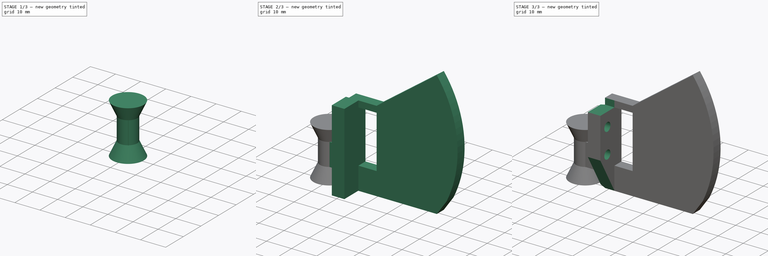
[diagram: build sequence overview — one tinted view per stage of 3, left to right]
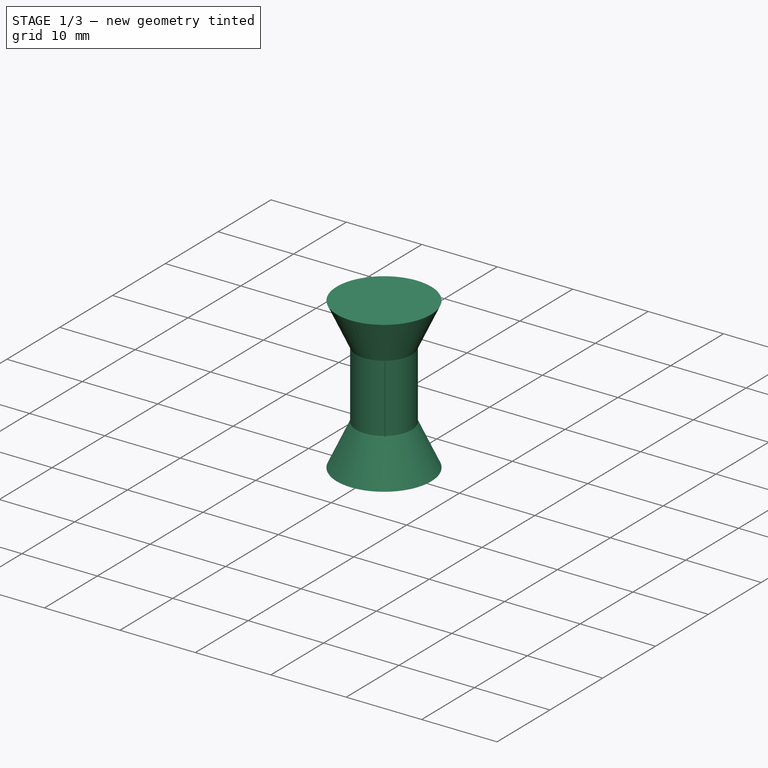
[diagram: stage 1 of 3 — iso view after this stage's code; geometry added in this stage tinted green]
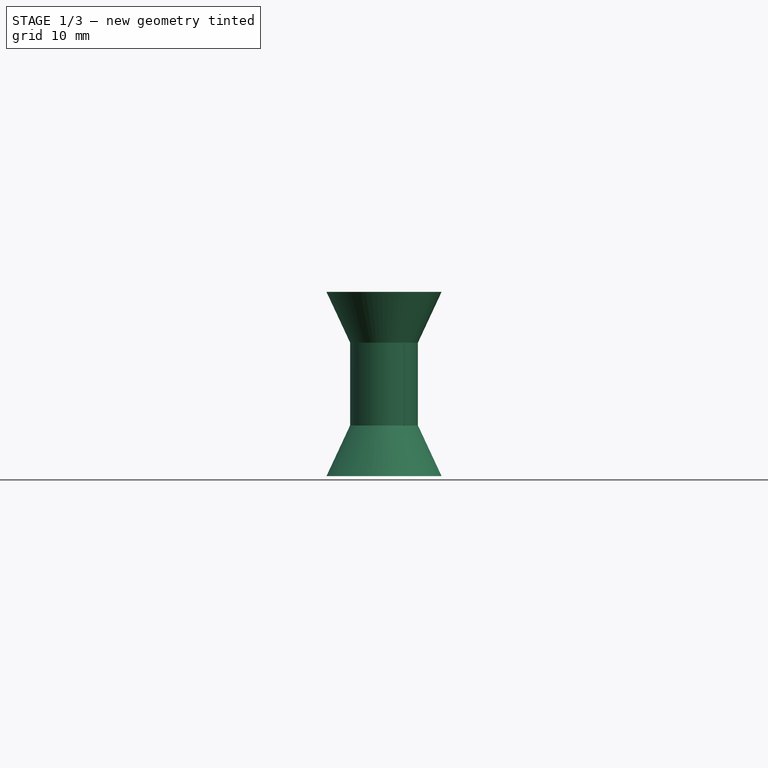
[diagram: stage 1 of 3 — front view after this stage's code; geometry added in this stage tinted green]
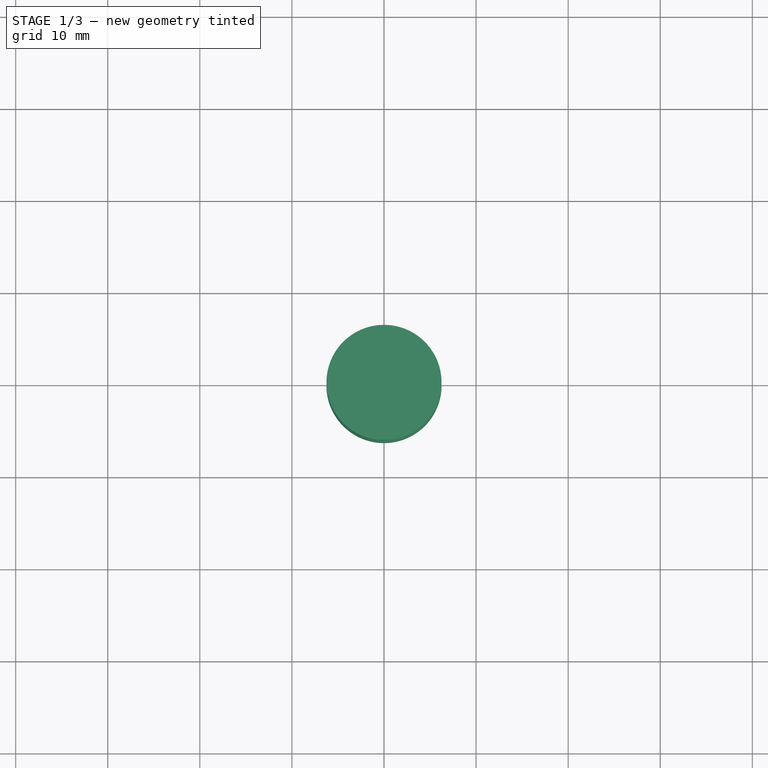
[diagram: stage 1 of 3 — top view after this stage's code; geometry added in this stage tinted green]
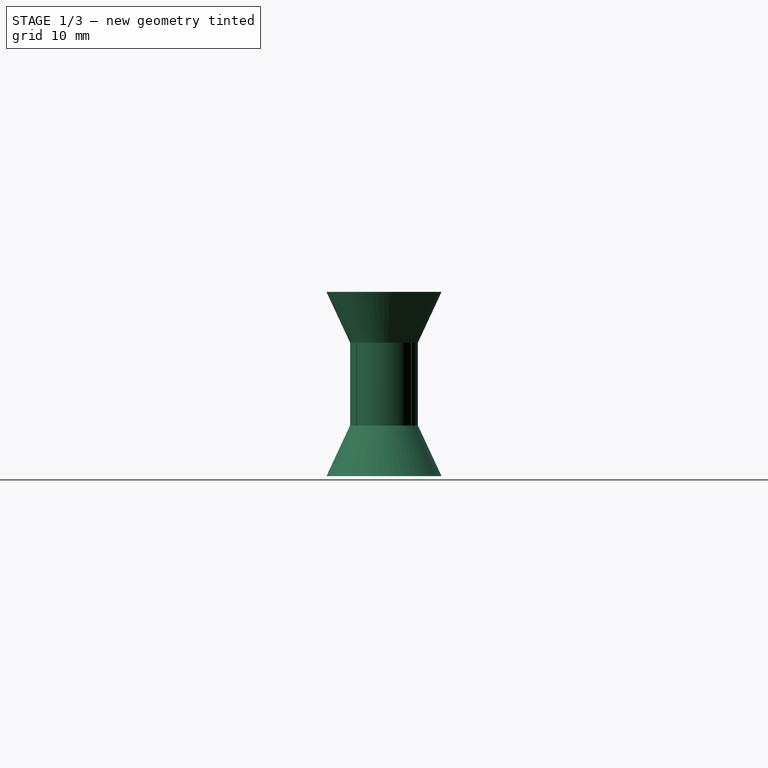
[diagram: stage 1 of 3 — right view after this stage's code; geometry added in this stage tinted green]
FCSTD DOCUMENT  (FreeCAD 0.16R6712 (Git))
Label: paddle_hindge
License: All rights reserved
LicenseURL: http://en.wikipedia.org/wiki/All_rights_reserved
objects: Sketcher::SketchObject×7, PartDesign::Pad×3, PartDesign::Pocket×3, PartDesign::Revolution×1
note: 21 computed .brp shape members not serialized (recipe doc carries the construction recipe); baked Part::Feature solids carry a one-line shape summary decoded from their .brp

FEATURE [Sketcher::SketchObject] Sketch
  Placement = pos=(0,0,0) rot=(1,0,0;1.5708rad)
  sketch-geometry (8):
    g0: LineSegment StartX=0 StartY=0 StartZ=0 EndX=6.25 EndY=0 EndZ=0
    g1: LineSegment StartX=6.25 StartY=0 StartZ=0 EndX=3.68531 EndY=5.5 EndZ=0
    g2: LineSegment StartX=3.68531 StartY=5.5 StartZ=0 EndX=3.68531 EndY=14.5 EndZ=0
    g3: LineSegment StartX=3.68531 StartY=14.5 StartZ=0 EndX=6.25 EndY=20 EndZ=0
    g4: LineSegment StartX=6.25 StartY=20 StartZ=0 EndX=0 EndY=20 EndZ=0
    g5: LineSegment [constr] StartX=0 StartY=14.5 StartZ=0 EndX=3.68531 EndY=14.5 EndZ=0
    g6: LineSegment [constr] StartX=3.68531 StartY=5.5 StartZ=0 EndX=0 EndY=5.5 EndZ=0
    g7: LineSegment StartX=0 StartY=20 StartZ=0 EndX=0 EndY=0 EndZ=0
  constraints (24):
    c: Horizontal(g0)
    c: Coincident(g0,g1)
    c: Coincident(g1,g2)
    c: Vertical(g2)
    c: Coincident(g2,g3)
    c: Coincident(g3,g4)
    c: Horizontal(g4)
    c: Equal(g0,g4)
    c: Coincident(g5,g2)
    c: Horizontal(g5)
    c: Coincident(g6,g1)
    c: Equal(g1,g3)
    c: Coincident(g7,g4)
    c: Vertical(g7)
    c: Coincident(g0,g7)
    c: Coincident(g0,g-1)
    c: Equal(g6,g5)
    c: Horizontal(g6)
    c: PointOnObject(g5,g7)
    c: Angle(g1,g0) = 1.13446
    c: DistanceX(g0,g0) = 6.25
    c: DistanceY(g7,g7) = 20
    c: DistanceY(g2,g2) = 9
    c: DistanceX(g5,g5) = 3.68531
FEATURE [PartDesign::Revolution] Revolution
  Angle = 360
  Axis = (0,0,1)
  Base = (0,0,0)
  Placement = pos=(0,0,0) rot=(1,0,0;1.5708rad)
  ReferenceAxis = -> Sketch [V_Axis]
  Reversed = true
  Sketch = -> Sketch
FEATURE [Sketcher::SketchObject] Sketch001
  Placement = pos=(0,0,20) rot=(0,0,1;3.14159rad)
  Support = -> Revolution [Face5]
  sketch-geometry (8):
    g0: LineSegment StartX=-1 StartY=3 StartZ=0 EndX=-2.25 EndY=3 EndZ=0
    g1: LineSegment StartX=-2.25 StartY=3 StartZ=0 EndX=-2.25 EndY=-3 EndZ=0
    g2: LineSegment StartX=-2.25 StartY=-3 StartZ=0 EndX=-1 EndY=-3 EndZ=0
    g3: LineSegment StartX=-1 StartY=-3 StartZ=0 EndX=-1 EndY=3 EndZ=0
    g4: LineSegment [constr] StartX=-1 StartY=3 StartZ=0 EndX=-1.625 EndY=0 EndZ=0
    g5: LineSegment [constr] StartX=-2.25 StartY=3 StartZ=0 EndX=-1.625 EndY=0 EndZ=0
    g6: LineSegment [constr] StartX=-2.25 StartY=-3 StartZ=0 EndX=-1.625 EndY=0 EndZ=0
    g7: LineSegment [constr] StartX=-1 StartY=-3 StartZ=0 EndX=-1.625 EndY=0 EndZ=0
  constraints (22):
    c: Coincident(g0,g1)
    c: Coincident(g1,g2)
    c: Coincident(g2,g3)
    c: Coincident(g3,g0)
    c: Horizontal(g0)
    c: Horizontal(g2)
    c: Vertical(g1)
    c: Vertical(g3)
    c: DistanceX(g2,g-1) = 1
    c: DistanceX(g2,g2) = 1.25
    c: DistanceY(g1,g1) = 6
    c: Coincident(g4,g0)
    c: Coincident(g5,g0)
    c: Coincident(g5,g4)
    c: Coincident(g6,g1)
    c: Coincident(g7,g2)
    c: Coincident(g4,g6)
    c: Coincident(g4,g7)
    c: Equal(g4,g5)
    c: Equal(g5,g7)
    c: Equal(g7,g6)
    c: PointOnObject(g4,g-1)
FEATURE [PartDesign::Pad] Pad
  Length = 20
  Length2 = 100
  Placement = pos=(0,0,0) rot=(1,0,0;1.5708rad)
  Reversed = true
  Sketch = -> Sketch001
  Type = 0
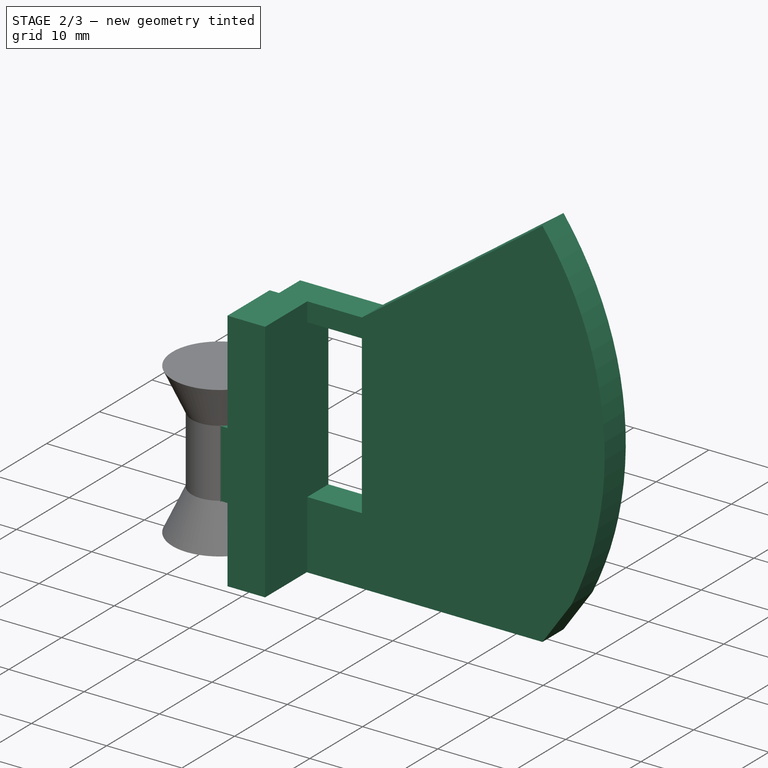
[diagram: stage 2 of 3 — iso view after this stage's code; geometry added in this stage tinted green]
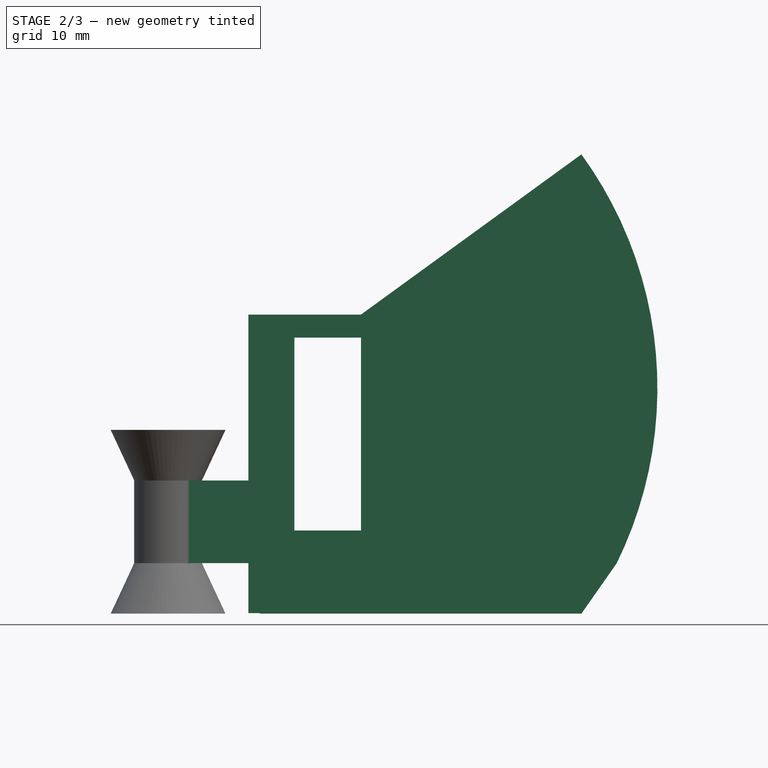
[diagram: stage 2 of 3 — front view after this stage's code; geometry added in this stage tinted green]
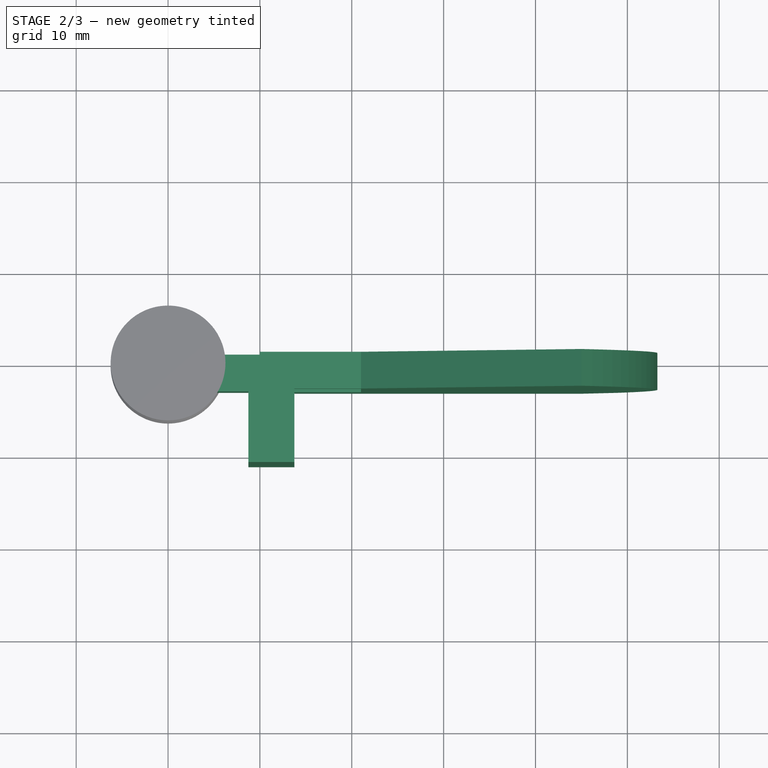
[diagram: stage 2 of 3 — top view after this stage's code; geometry added in this stage tinted green]
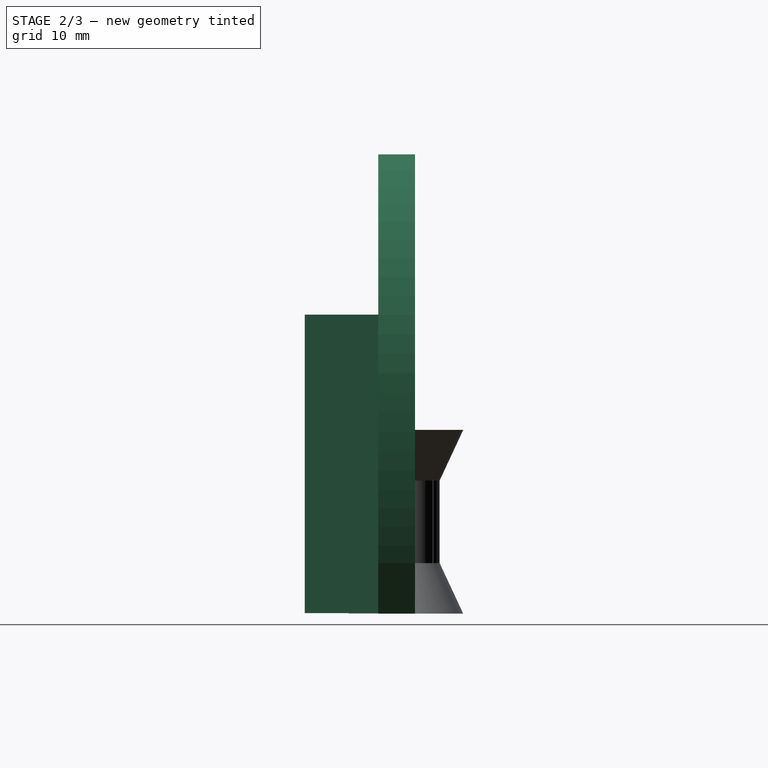
[diagram: stage 2 of 3 — right view after this stage's code; geometry added in this stage tinted green]
FEATURE [Sketcher::SketchObject] Sketch002
  ExternalGeometry = -> [Pad]
  Placement = pos=(0,-3,0) rot=(1,0,0;1.5708rad)
  Support = -> Pad [Face6]
  sketch-geometry (13):
    g0: LineSegment StartX=2.14044 StartY=14.5 StartZ=0 EndX=10 EndY=14.5 EndZ=0
    g1: LineSegment StartX=10 StartY=5.5 StartZ=0 EndX=2.14044 EndY=5.5 EndZ=0
    g2: LineSegment StartX=2.14044 StartY=5.5 StartZ=0 EndX=2.14044 EndY=14.5 EndZ=0
    g3: LineSegment StartX=10 StartY=5.5 StartZ=0 EndX=10 EndY=0 EndZ=0
    g4: LineSegment StartX=10 StartY=0 StartZ=0 EndX=45 EndY=0 EndZ=0
    g5: LineSegment StartX=21 StartY=32.5544 StartZ=0 EndX=45 EndY=50 EndZ=0
    g6: LineSegment [constr] StartX=45 StartY=50 StartZ=0 EndX=45 EndY=0 EndZ=0
    g7: LineSegment StartX=45 StartY=0 StartZ=0 EndX=48.8511 EndY=5.5 EndZ=0
    g8: ArcOfCircle CenterX=10 CenterY=24.5544 CenterZ=0 NormalX=0 NormalY=0 NormalZ=1 Radius=43.2722 StartAngle=5.82721 EndAngle=6.91181
    g9: LineSegment [constr] StartX=10 StartY=5.5 StartZ=0 EndX=48.8511 EndY=5.5 EndZ=0
    g10: LineSegment StartX=10 StartY=14.5 StartZ=0 EndX=10 EndY=32.5544 EndZ=0
    g11: LineSegment [constr] StartX=10 StartY=14.5 StartZ=0 EndX=10 EndY=5.5 EndZ=0
    g12: LineSegment StartX=10 StartY=32.5544 StartZ=0 EndX=21 EndY=32.5544 EndZ=0
  constraints (36):
    c: Coincident(g1,g2)
    c: Coincident(g2,g0)
    c: Horizontal(g0)
    c: Horizontal(g1)
    c: Vertical(g2)
    c: Coincident(g0,g-3)
    c: DistanceX(g-1,g1) = 10
    c: Coincident(g3,g1)
    c: Vertical(g3)
    c: Coincident(g3,g4)
    c: Horizontal(g4)
    c: Coincident(g6,g5)
    c: Vertical(g6)
    c: Coincident(g4,g6)
    c: PointOnObject(g3,g-1)
    c: Coincident(g7,g4)
    c: Angle(g7,g4) = 2.18166
    c: Coincident(g8,g7)
    c: Coincident(g8,g5)
    c: Coincident(g9,g1)
    c: Horizontal(g9)
    c: Coincident(g7,g9)
    c: Coincident(g1,g-3)
    c: DistanceY(g6,g6) = 50
    c: DistanceX(g4,g4) = 35
    c: DistanceX(g8,g0) = 0
    c: Coincident(g10,g0)
    c: Coincident(g11,g0)
    c: Vertical(g11)
    c: Coincident(g1,g11)
    c: Vertical(g10)
    c: Coincident(g12,g10)
    c: Horizontal(g12)
    c: Coincident(g5,g12)
    c: DistanceY(g8,g10) = 8
    c: DistanceX(g12,g12) = 11
FEATURE [PartDesign::Pad] Pad001
  Length = 4
  Length2 = 100
  Placement = pos=(0,0,0) rot=(1,0,0;1.5708rad)
  Reversed = true
  Sketch = -> Sketch002
  Type = 0
FEATURE [Sketcher::SketchObject] Sketch003
  ExternalGeometry = -> [Pad001]
  Placement = pos=(0,-3,0) rot=(1,0,0;1.5708rad)
  Support = -> Pad001 [Face11]
  sketch-geometry (5):
    g0: LineSegment StartX=13.75 StartY=30.0544 StartZ=0 EndX=21 EndY=30.0544 EndZ=0
    g1: LineSegment StartX=21 StartY=30.0544 StartZ=0 EndX=21 EndY=9.05437 EndZ=0
    g2: LineSegment StartX=21 StartY=9.05437 StartZ=0 EndX=13.75 EndY=9.05437 EndZ=0
    g3: LineSegment StartX=13.75 StartY=9.05437 StartZ=0 EndX=13.75 EndY=30.0544 EndZ=0
    g4: LineSegment [constr] StartX=21 StartY=32.5544 StartZ=0 EndX=21 EndY=30.0544 EndZ=0
  constraints (14):
    c: Coincident(g0,g1)
    c: Coincident(g1,g2)
    c: Coincident(g2,g3)
    c: Coincident(g3,g0)
    c: Horizontal(g0)
    c: Horizontal(g2)
    c: Vertical(g1)
    c: Vertical(g3)
    c: DistanceX(g0,g0) = 7.25
    c: DistanceY(g1,g1) = 21
    c: Coincident(g4,g-3)
    c: Vertical(g4)
    c: Coincident(g0,g4)
    c: DistanceY(g4,g4) = 2.5
FEATURE [PartDesign::Pocket] Pocket
  Length = 5
  Placement = pos=(0,0,0) rot=(1,0,0;1.5708rad)
  Sketch = -> Sketch003
  Type = 0
FEATURE [Sketcher::SketchObject] Sketch004
  ExternalGeometry = -> [Pocket]
  Placement = pos=(0,0,32.5544) rot=(0,0,1;3.14159rad)
  Support = -> Pocket [Face21]
  sketch-geometry (4):
    g0: LineSegment StartX=-13.75 StartY=3 StartZ=0 EndX=-13.75 EndY=11 EndZ=0
    g1: LineSegment StartX=-13.75 StartY=11 StartZ=0 EndX=-8.75 EndY=11 EndZ=0
    g2: LineSegment StartX=-8.75 StartY=11 StartZ=0 EndX=-8.75 EndY=3 EndZ=0
    g3: LineSegment StartX=-8.75 StartY=3 StartZ=0 EndX=-13.75 EndY=3 EndZ=0
  constraints (11):
    c: Vertical(g0)
    c: Coincident(g0,g1)
    c: Horizontal(g1)
    c: Coincident(g1,g2)
    c: Coincident(g0,g3)
    c: Horizontal(g3)
    c: Coincident(g0,g-3)
    c: DistanceX(g1,g1) = 5
    c: Coincident(g2,g3)
    c: Vertical(g2)
    c: DistanceY(g2,g2) = 8
FEATURE [PartDesign::Pad] Pad002
  Length = 32.5
  Length2 = 100
  Placement = pos=(0,0,0) rot=(1,0,0;1.5708rad)
  Reversed = true
  Sketch = -> Sketch004
  Type = 0
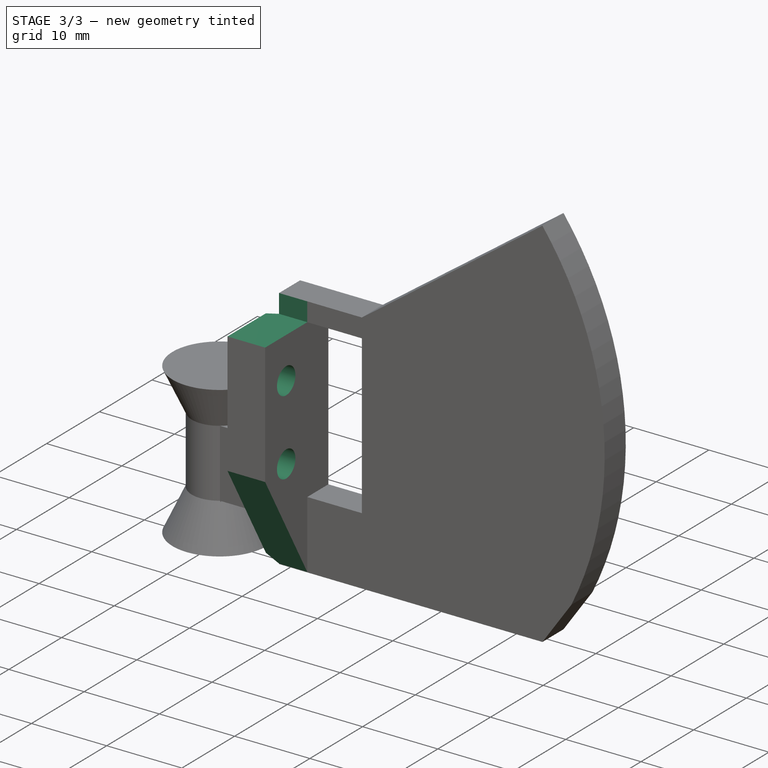
[diagram: stage 3 of 3 — iso view after this stage's code; geometry added in this stage tinted green]
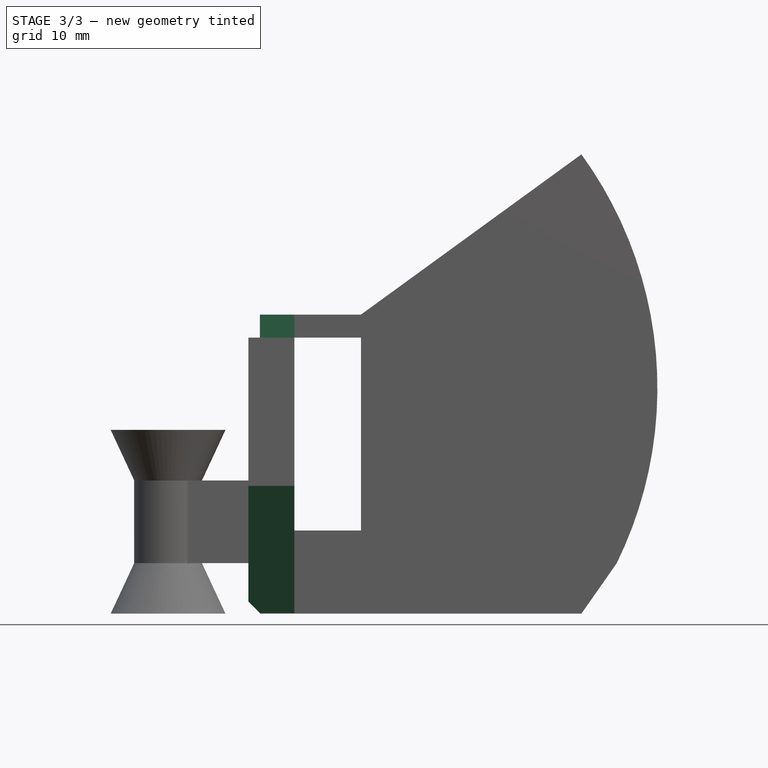
[diagram: stage 3 of 3 — front view after this stage's code; geometry added in this stage tinted green]
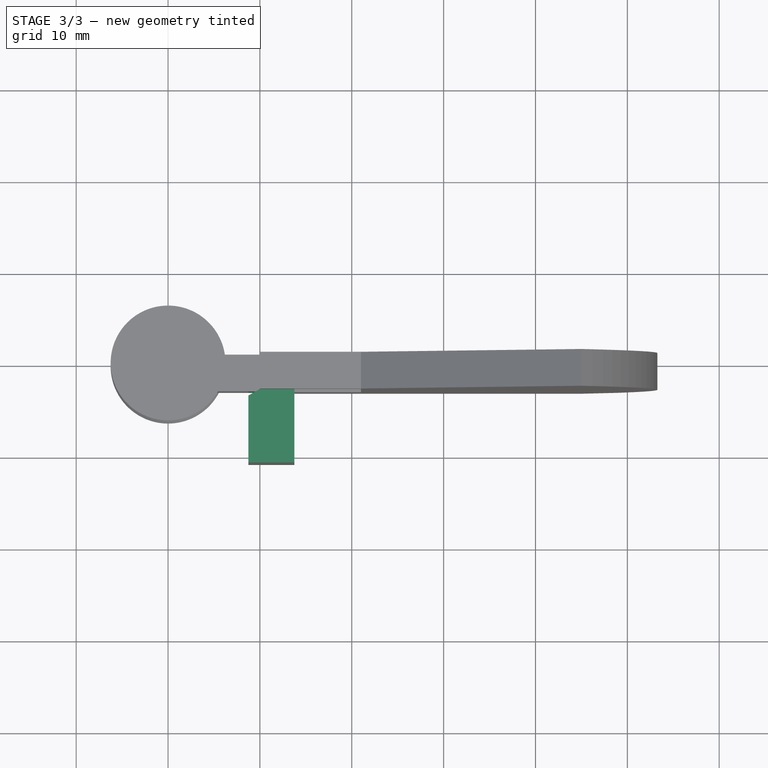
[diagram: stage 3 of 3 — top view after this stage's code; geometry added in this stage tinted green]
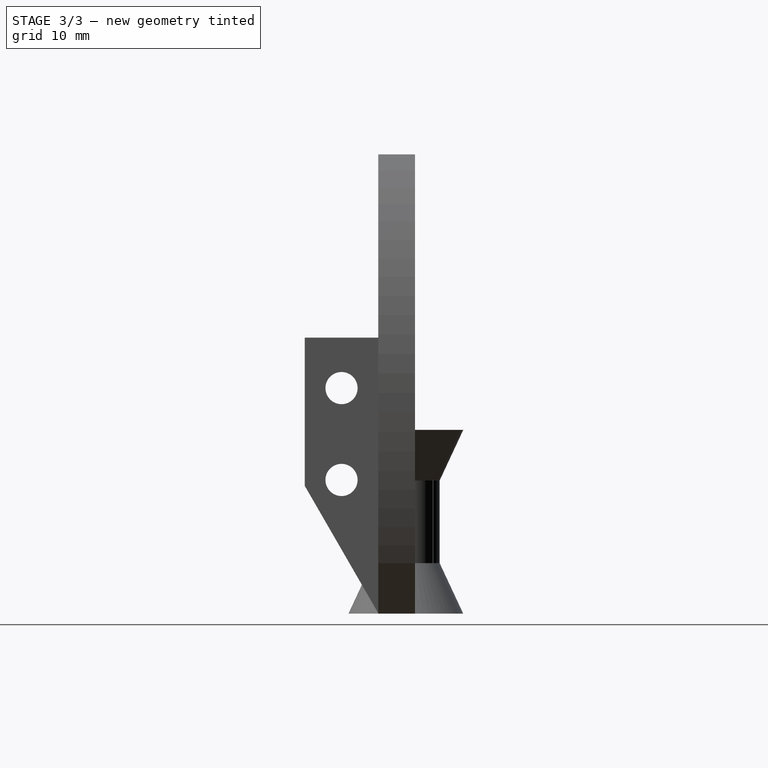
[diagram: stage 3 of 3 — right view after this stage's code; geometry added in this stage tinted green]
FEATURE [Sketcher::SketchObject] Sketch005
  ExternalGeometry = -> [Pad002]
  Placement = pos=(13.75,0,0) rot=(0.707107,0,0.707107;3.14159rad)
  Support = -> Pad002 [Face34]
  sketch-geometry (13):
    g0: LineSegment StartX=0.0543686 StartY=11 StartZ=0 EndX=13.9108 EndY=11 EndZ=0
    g1: LineSegment StartX=13.9108 StartY=11 StartZ=0 EndX=0.0543686 EndY=3 EndZ=0
    g2: LineSegment StartX=0.0543686 StartY=3 StartZ=0 EndX=0.0543686 EndY=11 EndZ=0
    g3: LineSegment StartX=30.0544 StartY=11 StartZ=0 EndX=30.0544 EndY=3 EndZ=0
    g4: LineSegment StartX=30.0544 StartY=3 StartZ=0 EndX=32.5544 EndY=3 EndZ=0
    g5: LineSegment StartX=32.5544 StartY=3 StartZ=0 EndX=32.5544 EndY=11 EndZ=0
    g6: LineSegment StartX=32.5544 StartY=11 StartZ=0 EndX=30.0544 EndY=11 EndZ=0
    g7: Circle CenterX=14.5544 CenterY=7 CenterZ=0 NormalX=0 NormalY=0 NormalZ=1 Radius=1.75
    g8: Circle CenterX=24.5544 CenterY=7 CenterZ=0 NormalX=0 NormalY=0 NormalZ=1 Radius=1.75
    g9: LineSegment [constr] StartX=14.5544 StartY=7 StartZ=0 EndX=19.5544 EndY=7 EndZ=0
    g10: LineSegment [constr] StartX=24.5544 StartY=7 StartZ=0 EndX=19.5544 EndY=7 EndZ=0
    g11: LineSegment [constr] StartX=30.0544 StartY=11 StartZ=0 EndX=24.5544 EndY=7 EndZ=0
    g12: LineSegment [constr] StartX=30.0544 StartY=3 StartZ=0 EndX=24.5544 EndY=7 EndZ=0
  constraints (34):
    c: Horizontal(g0)
    c: Coincident(g0,g1)
    c: Coincident(g1,g2)
    c: Vertical(g2)
    c: Vertical(g3)
    c: Coincident(g3,g4)
    c: Horizontal(g4)
    c: Coincident(g4,g5)
    c: Vertical(g5)
    c: Coincident(g5,g6)
    c: Horizontal(g6)
    c: Coincident(g3,g6)
    c: Coincident(g9,g7)
    c: Horizontal(g9)
    c: Coincident(g10,g8)
    c: Horizontal(g10)
    c: Coincident(g9,g10)
    c: Equal(g9,g10)
    c: DistanceX(g9,g9) = 5
    c: Coincident(g5,g-3)
    c: DistanceX(g6,g6) = 2.5
    c: Coincident(g4,g-3)
    c: DistanceX(g8,g3) = 5.5
    c: Radius(g7) = 1.75
    c: Equal(g7,g8)
    c: Coincident(g11,g3)
    c: Coincident(g12,g3)
    c: Coincident(g8,g11)
    c: Coincident(g8,g12)
    c: Equal(g12,g11)
    c: Coincident(g0,g2)
    c: Coincident(g0,g-4)
    c: Coincident(g1,g-4)
    c: Angle(g1,g-4) = 1.0472
FEATURE [PartDesign::Pocket] Pocket001
  Length = 5
  Placement = pos=(0,0,0) rot=(1,0,0;1.5708rad)
  Sketch = -> Sketch005
  Type = 0
FEATURE [Sketcher::SketchObject] Sketch006
  ExternalGeometry = -> [Pocket001]
  Placement = pos=(0,0,30.0544) rot=(0,0,1;3.14159rad)
  Support = -> Pocket001 [Face34]
  sketch-geometry (3):
    g0: LineSegment StartX=-10 StartY=3 StartZ=0 EndX=-8.75 EndY=3.72169 EndZ=0
    g1: LineSegment StartX=-8.75 StartY=3.72169 StartZ=0 EndX=-8.75 EndY=3 EndZ=0
    g2: LineSegment StartX=-8.75 StartY=3 StartZ=0 EndX=-10 EndY=3 EndZ=0
  constraints (8):
    c: Coincident(g0,g1)
    c: Vertical(g1)
    c: Coincident(g1,g2)
    c: Horizontal(g2)
    c: Coincident(g0,g2)
    c: Coincident(g1,g-3)
    c: Angle(g2,g0) = 0.523599
    c: Coincident(g0,g-4)
FEATURE [PartDesign::Pocket] Pocket002
  Length = 5
  Placement = pos=(0,0,0) rot=(1,0,0;1.5708rad)
  Sketch = -> Sketch006
  Type = 1
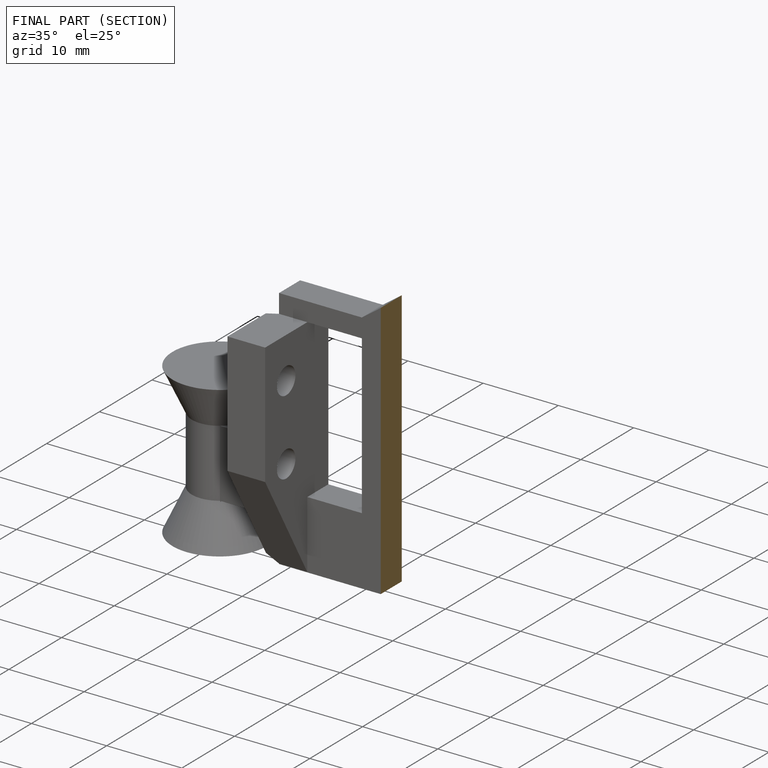
[diagram: finished part — half-section view (interior)]
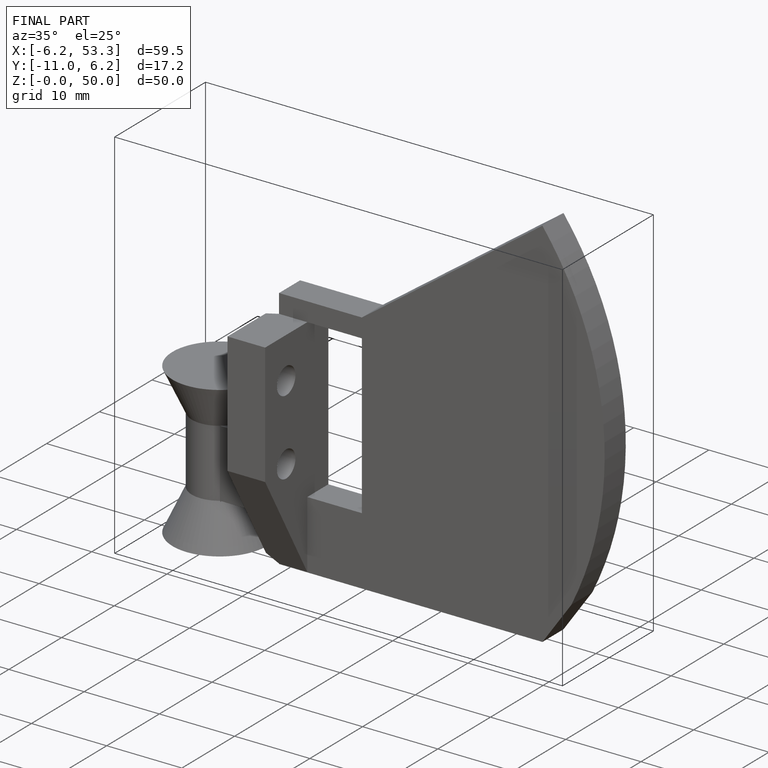
[diagram: finished part — iso view with bounding-box wireframe]
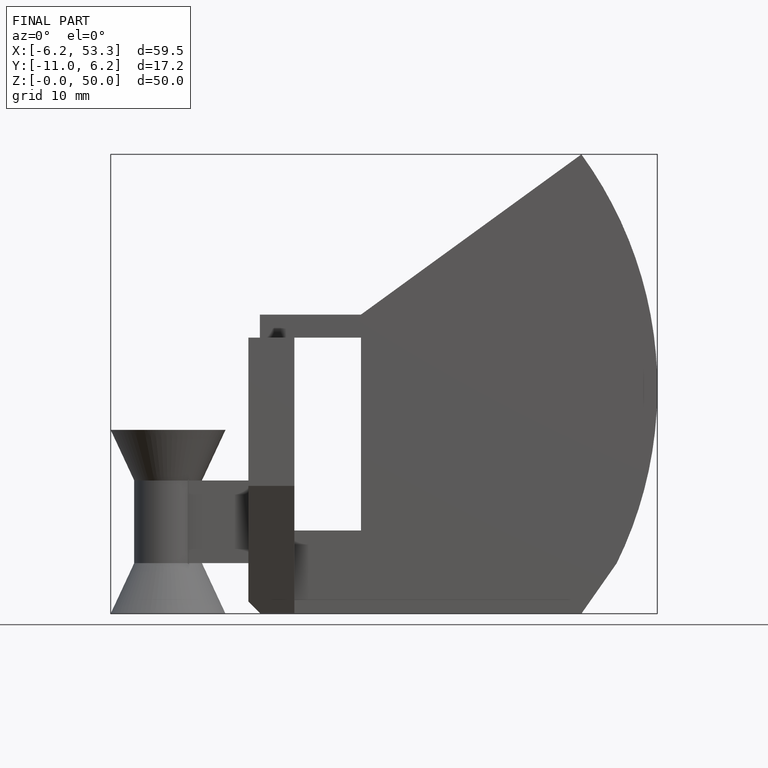
[diagram: finished part — front view with bounding-box wireframe]
